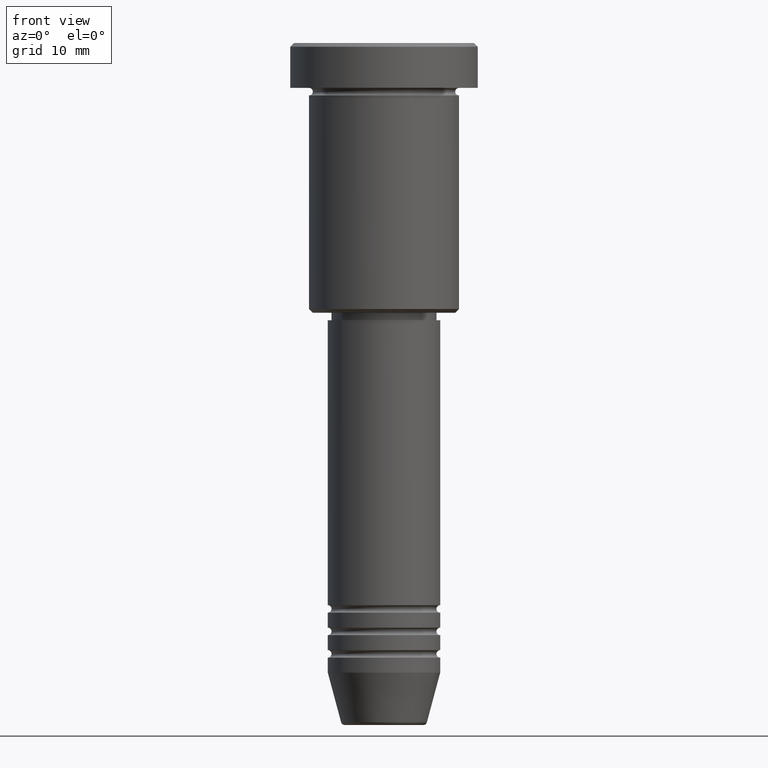
[diagram: clean part render]
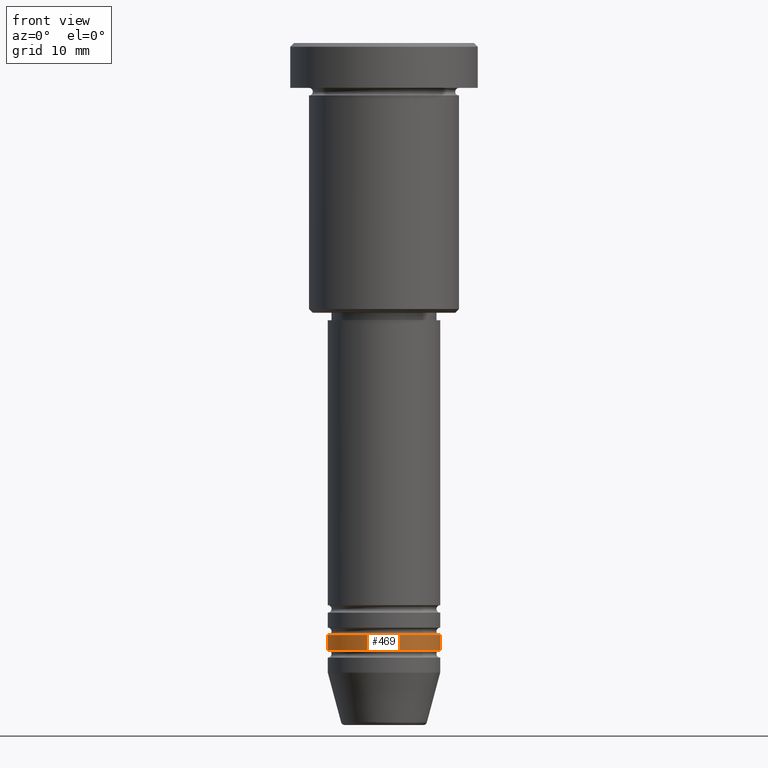
[diagram: same view with one face highlighted and labeled with its STEP entity id]
A machine part, front view. The second image highlights one B-rep face of the part: STEP entity #469.
In plain terms, the highlighted cylindrical surface (partial cylindrical patch) has radius 7.5 mm, axis along (-0, -0, 1).
Its self-contained STEP definition (entity closure, byte-faithful):
#53 = AXIS2_PLACEMENT_3D ( 'NONE', #161, #1150, #140 ) ;
#62 = EDGE_CURVE ( 'NONE', #359, #541, #1029, .T. ) ;
#140 = DIRECTION ( 'NONE',  ( 1.000000000000000000, 0.000000000000000000, 0.000000000000000000 ) ) ;
#145 = VERTEX_POINT ( 'NONE', #388 ) ;
#161 = CARTESIAN_POINT ( 'NONE',  ( 0.000000000000000000, 0.000000000000000000, -78.99999999999997158 ) ) ;
#215 = DIRECTION ( 'NONE',  ( -0.000000000000000000, -0.000000000000000000, 1.000000000000000000 ) ) ;
#275 = ORIENTED_EDGE ( 'NONE', *, *, #62, .F. ) ;
#329 = CARTESIAN_POINT ( 'NONE',  ( -7.500000000000000000, 9.184850993605147944E-16, -78.99999999999997158 ) ) ;
#346 = CARTESIAN_POINT ( 'NONE',  ( 0.000000000000000000, 0.000000000000000000, 0.000000000000000000 ) ) ;
#359 = VERTEX_POINT ( 'NONE', #849 ) ;
#371 = DIRECTION ( 'NONE',  ( -0.000000000000000000, -0.000000000000000000, 1.000000000000000000 ) ) ;
#381 = ORIENTED_EDGE ( 'NONE', *, *, #1064, .T. ) ;
#388 = CARTESIAN_POINT ( 'NONE',  ( 7.500000000000000000, 0.000000000000000000, -78.99999999999997158 ) ) ;
#469 = ADVANCED_FACE ( 'NONE', ( #887 ), #786, .T. ) ;
#488 = EDGE_CURVE ( 'NONE', #541, #145, #1158, .T. ) ;
#540 = LINE ( 'NONE', #905, #625 ) ;
#541 = VERTEX_POINT ( 'NONE', #329 ) ;
#558 = DIRECTION ( 'NONE',  ( -0.000000000000000000, -0.000000000000000000, 1.000000000000000000 ) ) ;
#616 = CARTESIAN_POINT ( 'NONE',  ( 7.500000000000000000, 0.000000000000000000, -80.99999999999997158 ) ) ;
#617 = VERTEX_POINT ( 'NONE', #616 ) ;
#625 = VECTOR ( 'NONE', #371, 1000.000000000000000 ) ;
#641 = ORIENTED_EDGE ( 'NONE', *, *, #488, .F. ) ;
#657 = EDGE_CURVE ( 'NONE', #617, #145, #540, .T. ) ;
#664 = CIRCLE ( 'NONE', #1143, 7.500000000000000000 ) ;
#695 = DIRECTION ( 'NONE',  ( -0.000000000000000000, -0.000000000000000000, 1.000000000000000000 ) ) ;
#738 = CARTESIAN_POINT ( 'NONE',  ( -7.500000000000000000, 9.184850993605147944E-16, 0.000000000000000000 ) ) ;
#786 = CYLINDRICAL_SURFACE ( 'NONE', #1078, 7.500000000000000000 ) ;
#793 = DIRECTION ( 'NONE',  ( 1.000000000000000000, 0.000000000000000000, 0.000000000000000000 ) ) ;
#824 = CARTESIAN_POINT ( 'NONE',  ( 0.000000000000000000, 0.000000000000000000, -80.99999999999997158 ) ) ;
#838 = VECTOR ( 'NONE', #215, 1000.000000000000000 ) ;
#849 = CARTESIAN_POINT ( 'NONE',  ( -7.500000000000000000, 9.184850993605147944E-16, -80.99999999999997158 ) ) ;
#873 = ORIENTED_EDGE ( 'NONE', *, *, #657, .T. ) ;
#887 = FACE_OUTER_BOUND ( 'NONE', #947, .T. ) ;
#905 = CARTESIAN_POINT ( 'NONE',  ( 7.500000000000000000, 0.000000000000000000, 0.000000000000000000 ) ) ;
#925 = DIRECTION ( 'NONE',  ( 1.000000000000000000, 0.000000000000000000, 0.000000000000000000 ) ) ;
#947 = EDGE_LOOP ( 'NONE', ( #275, #381, #873, #641 ) ) ;
#1029 = LINE ( 'NONE', #738, #838 ) ;
#1064 = EDGE_CURVE ( 'NONE', #359, #617, #664, .T. ) ;
#1078 = AXIS2_PLACEMENT_3D ( 'NONE', #346, #695, #793 ) ;
#1143 = AXIS2_PLACEMENT_3D ( 'NONE', #824, #558, #925 ) ;
#1150 = DIRECTION ( 'NONE',  ( -0.000000000000000000, -0.000000000000000000, 1.000000000000000000 ) ) ;
#1158 = CIRCLE ( 'NONE', #53, 7.500000000000000000 ) ;